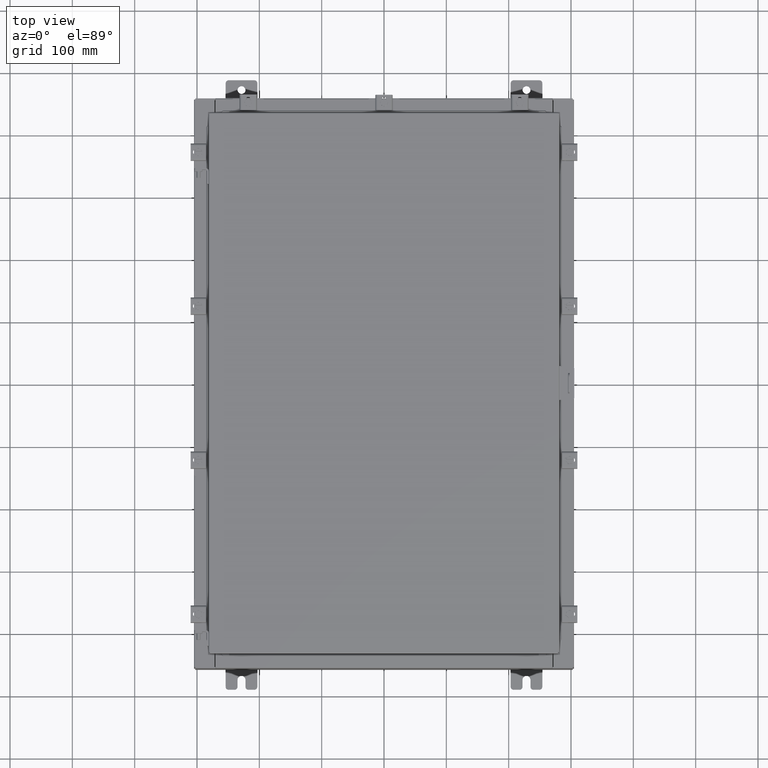
[diagram: clean part render]
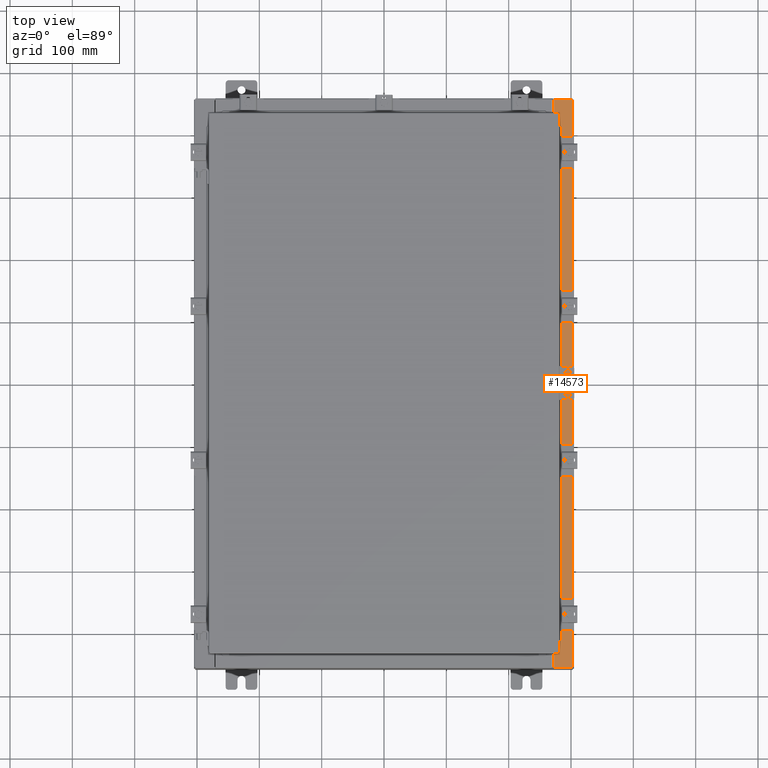
[diagram: same view with one face highlighted and labeled with its STEP entity id]
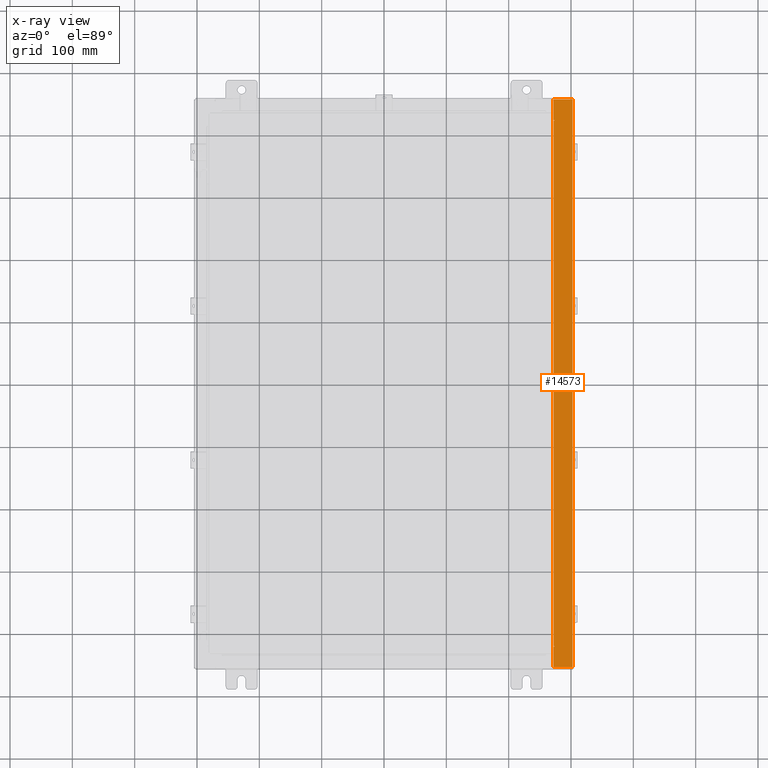
[diagram: x-ray of the same camera — body ghosted, the highlighted face saturated]
A machine part, top view. The second image highlights one B-rep face of the part: STEP entity #14573.
The next image is the same camera in x-ray: the body ghosted, the highlighted face saturated — about 0% of this face is hidden behind the body in this view.
In plain terms, the highlighted planar face has unit normal (-0, 0, -1).
Its self-contained STEP definition (entity closure, byte-faithful):
#76 = EDGE_CURVE ( 'NONE', #21820, #3372, #6735, .T. ) ;
#226 = CARTESIAN_POINT ( 'NONE',  ( 10.69970000000002100, 0.0000000000000000000, 5.925300000000009800 ) ) ;
#419 = EDGE_CURVE ( 'NONE', #1459, #16451, #18517, .T. ) ;
#509 = ORIENTED_EDGE ( 'NONE', *, *, #14101, .T. ) ;
#1019 = CARTESIAN_POINT ( 'NONE',  ( 11.91230000000002000, -17.92530000000000000, 5.925300000000001800 ) ) ;
#1069 = CARTESIAN_POINT ( 'NONE',  ( 10.75005000000002100, 16.63110000000000000, 5.925300000000009800 ) ) ;
#1251 = VECTOR ( 'NONE', #10901, 39.37007874015748100 ) ;
#1459 = VERTEX_POINT ( 'NONE', #3139 ) ;
#1753 = EDGE_CURVE ( 'NONE', #8134, #19213, #15656, .T. ) ;
#1778 = ORIENTED_EDGE ( 'NONE', *, *, #419, .F. ) ;
#1953 = VECTOR ( 'NONE', #21717, 39.37007874015748100 ) ;
#2091 = CARTESIAN_POINT ( 'NONE',  ( 10.69970000000002100, 0.0000000000000000000, 5.925300000000009800 ) ) ;
#2229 = EDGE_CURVE ( 'NONE', #3989, #8134, #16124, .T. ) ;
#3129 = DIRECTION ( 'NONE',  ( -7.132762385546384700E-015, 0.0000000000000000000, -1.000000000000000000 ) ) ;
#3139 = CARTESIAN_POINT ( 'NONE',  ( 10.75005000000002100, -16.63110000000000000, 5.925300000000009800 ) ) ;
#3240 = LINE ( 'NONE', #1019, #6329 ) ;
#3372 = VERTEX_POINT ( 'NONE', #7873 ) ;
#3989 = VERTEX_POINT ( 'NONE', #11096 ) ;
#4210 = DIRECTION ( 'NONE',  ( 1.000000000000000000, 4.340572780400098900E-014, 2.170286390200049500E-014 ) ) ;
#4312 = LINE ( 'NONE', #13062, #22282 ) ;
#4551 = LINE ( 'NONE', #9177, #13544 ) ;
#5312 = DIRECTION ( 'NONE',  ( -1.000000000000000000, 0.0000000000000000000, 7.132762385546384700E-015 ) ) ;
#5380 = CARTESIAN_POINT ( 'NONE',  ( 10.75005000000002100, -16.59375000000000000, 5.925300000000009800 ) ) ;
#5470 = CARTESIAN_POINT ( 'NONE',  ( 10.69970000000002100, 17.92530000000000000, 5.925300000000009800 ) ) ;
#5878 = VERTEX_POINT ( 'NONE', #19323 ) ;
#6108 = VECTOR ( 'NONE', #12732, 39.37007874015748100 ) ;
#6329 = VECTOR ( 'NONE', #13609, 39.37007874015748100 ) ;
#6365 = CARTESIAN_POINT ( 'NONE',  ( 10.69970000000002100, -16.63110000000000400, 5.925300000000009800 ) ) ;
#6713 = DIRECTION ( 'NONE',  ( 1.000000000000000000, 0.0000000000000000000, 0.0000000000000000000 ) ) ;
#6735 = LINE ( 'NONE', #2091, #1953 ) ;
#6849 = CARTESIAN_POINT ( 'NONE',  ( 1.056034422168157600E-014, -17.92529999999998200, 5.925300000000087100 ) ) ;
#7436 = CARTESIAN_POINT ( 'NONE',  ( 10.75005000000002100, -16.61242500000000200, 5.925300000000011600 ) ) ;
#7696 = DIRECTION ( 'NONE',  ( -1.000000000000000000, 4.340572780400098900E-014, -2.170286390200049500E-014 ) ) ;
#7795 = VECTOR ( 'NONE', #21323, 39.37007874015748100 ) ;
#7802 = CARTESIAN_POINT ( 'NONE',  ( 10.75005000000002100, 16.61242500000000200, 5.925300000000011600 ) ) ;
#7873 = CARTESIAN_POINT ( 'NONE',  ( 10.69970000000002100, -17.92530000000000000, 5.925300000000009800 ) ) ;
#8134 = VERTEX_POINT ( 'NONE', #5470 ) ;
#8365 = ORIENTED_EDGE ( 'NONE', *, *, #13934, .F. ) ;
#8403 = AXIS2_PLACEMENT_3D ( 'NONE', #7436, #11177, #6713 ) ;
#8825 = EDGE_CURVE ( 'NONE', #21758, #17633, #17917, .T. ) ;
#9023 = CARTESIAN_POINT ( 'NONE',  ( 10.75005000000002100, -16.59375000000000000, 5.925300000000011600 ) ) ;
#9177 = CARTESIAN_POINT ( 'NONE',  ( 10.71270000000002100, 16.59375000000000000, 5.925300000000011600 ) ) ;
#9598 = ORIENTED_EDGE ( 'NONE', *, *, #76, .T. ) ;
#9608 = DIRECTION ( 'NONE',  ( 1.000000000000000000, 0.0000000000000000000, 0.0000000000000000000 ) ) ;
#9658 = CARTESIAN_POINT ( 'NONE',  ( 10.71270000000002100, -16.59375000000000000, 5.925300000000011600 ) ) ;
#10901 = DIRECTION ( 'NONE',  ( -1.000000000000000000, 0.0000000000000000000, 0.0000000000000000000 ) ) ;
#11068 = EDGE_CURVE ( 'NONE', #11291, #19213, #4312, .T. ) ;
#11096 = CARTESIAN_POINT ( 'NONE',  ( 11.91230000000002000, 17.92530000000000000, 5.925300000000001800 ) ) ;
#11177 = DIRECTION ( 'NONE',  ( 7.132762385546384700E-015, 0.0000000000000000000, 1.000000000000000000 ) ) ;
#11291 = VERTEX_POINT ( 'NONE', #1069 ) ;
#11338 = VECTOR ( 'NONE', #5312, 39.37007874015748100 ) ;
#11373 = LINE ( 'NONE', #9023, #1251 ) ;
#11512 = AXIS2_PLACEMENT_3D ( 'NONE', #12069, #3129, #15688 ) ;
#12069 = CARTESIAN_POINT ( 'NONE',  ( 4.252457061909019600E-014, 0.0000000000000000000, 5.925300000000087100 ) ) ;
#12732 = DIRECTION ( 'NONE',  ( 0.0000000000000000000, -1.000000000000000000, 0.0000000000000000000 ) ) ;
#12770 = VECTOR ( 'NONE', #4210, 39.37007874015748100 ) ;
#12856 = ORIENTED_EDGE ( 'NONE', *, *, #1753, .T. ) ;
#13062 = CARTESIAN_POINT ( 'NONE',  ( 10.75005000000002100, 16.63110000000000000, 5.925300000000011600 ) ) ;
#13175 = CARTESIAN_POINT ( 'NONE',  ( 10.69970000000002100, -16.63110000000000400, 5.925300000000009800 ) ) ;
#13241 = VERTEX_POINT ( 'NONE', #21730 ) ;
#13544 = VECTOR ( 'NONE', #19951, 39.37007874015748100 ) ;
#13609 = DIRECTION ( 'NONE',  ( -0.0000000000000000000, -1.000000000000000000, -0.0000000000000000000 ) ) ;
#13934 = EDGE_CURVE ( 'NONE', #3989, #13241, #3240, .T. ) ;
#14101 = EDGE_CURVE ( 'NONE', #3372, #13241, #14191, .T. ) ;
#14191 = LINE ( 'NONE', #6849, #22615 ) ;
#14269 = EDGE_CURVE ( 'NONE', #16451, #21758, #11373, .T. ) ;
#14573 = ADVANCED_FACE ( 'NONE', ( #15293 ), #22849, .F. ) ;
#14985 = EDGE_CURVE ( 'NONE', #21820, #1459, #16967, .T. ) ;
#15293 = FACE_OUTER_BOUND ( 'NONE', #22151, .T. ) ;
#15656 = LINE ( 'NONE', #226, #6108 ) ;
#15688 = DIRECTION ( 'NONE',  ( -1.000000000000000000, 0.0000000000000000000, 7.132762385546384700E-015 ) ) ;
#15736 = ORIENTED_EDGE ( 'NONE', *, *, #17113, .F. ) ;
#16063 = CARTESIAN_POINT ( 'NONE',  ( 4.252457061909019600E-014, 17.92529999999999600, 5.925300000000087100 ) ) ;
#16124 = LINE ( 'NONE', #16063, #11338 ) ;
#16451 = VERTEX_POINT ( 'NONE', #5380 ) ;
#16967 = LINE ( 'NONE', #13175, #12770 ) ;
#17113 = EDGE_CURVE ( 'NONE', #17633, #5878, #4551, .T. ) ;
#17633 = VERTEX_POINT ( 'NONE', #17734 ) ;
#17734 = CARTESIAN_POINT ( 'NONE',  ( 10.71270000000002100, 16.59375000000000000, 5.925300000000011600 ) ) ;
#17917 = LINE ( 'NONE', #19532, #7795 ) ;
#18202 = ORIENTED_EDGE ( 'NONE', *, *, #14985, .F. ) ;
#18222 = AXIS2_PLACEMENT_3D ( 'NONE', #7802, #20389, #9608 ) ;
#18403 = ORIENTED_EDGE ( 'NONE', *, *, #14269, .F. ) ;
#18517 = CIRCLE ( 'NONE', #8403, 0.01867499999999949400 ) ;
#18926 = ORIENTED_EDGE ( 'NONE', *, *, #11068, .F. ) ;
#19213 = VERTEX_POINT ( 'NONE', #20345 ) ;
#19323 = CARTESIAN_POINT ( 'NONE',  ( 10.75005000000002100, 16.59375000000000000, 5.925300000000009800 ) ) ;
#19532 = CARTESIAN_POINT ( 'NONE',  ( 10.71270000000002100, -16.59375000000000000, 5.925300000000011600 ) ) ;
#19780 = ORIENTED_EDGE ( 'NONE', *, *, #8825, .F. ) ;
#19951 = DIRECTION ( 'NONE',  ( 1.000000000000000000, 0.0000000000000000000, 0.0000000000000000000 ) ) ;
#20345 = CARTESIAN_POINT ( 'NONE',  ( 10.69970000000002100, 16.63110000000000000, 5.925300000000009800 ) ) ;
#20389 = DIRECTION ( 'NONE',  ( 7.132762385546384700E-015, 0.0000000000000000000, 1.000000000000000000 ) ) ;
#20456 = ORIENTED_EDGE ( 'NONE', *, *, #20997, .F. ) ;
#20779 = CIRCLE ( 'NONE', #18222, 0.01867499999999949400 ) ;
#20997 = EDGE_CURVE ( 'NONE', #5878, #11291, #20779, .T. ) ;
#21323 = DIRECTION ( 'NONE',  ( -0.0000000000000000000, 1.000000000000000000, -0.0000000000000000000 ) ) ;
#21541 = ORIENTED_EDGE ( 'NONE', *, *, #2229, .T. ) ;
#21717 = DIRECTION ( 'NONE',  ( 0.0000000000000000000, -1.000000000000000000, 0.0000000000000000000 ) ) ;
#21730 = CARTESIAN_POINT ( 'NONE',  ( 11.91230000000002000, -17.92530000000000000, 5.925300000000001800 ) ) ;
#21758 = VERTEX_POINT ( 'NONE', #9658 ) ;
#21820 = VERTEX_POINT ( 'NONE', #6365 ) ;
#22151 = EDGE_LOOP ( 'NONE', ( #18202, #9598, #509, #8365, #21541, #12856, #18926, #20456, #15736, #19780, #18403, #1778 ) ) ;
#22282 = VECTOR ( 'NONE', #7696, 39.37007874015748100 ) ;
#22615 = VECTOR ( 'NONE', #23096, 39.37007874015748100 ) ;
#22849 = PLANE ( 'NONE',  #11512 ) ;
#23096 = DIRECTION ( 'NONE',  ( 1.000000000000000000, -1.783190596386596200E-015, -7.132762385546384700E-015 ) ) ;